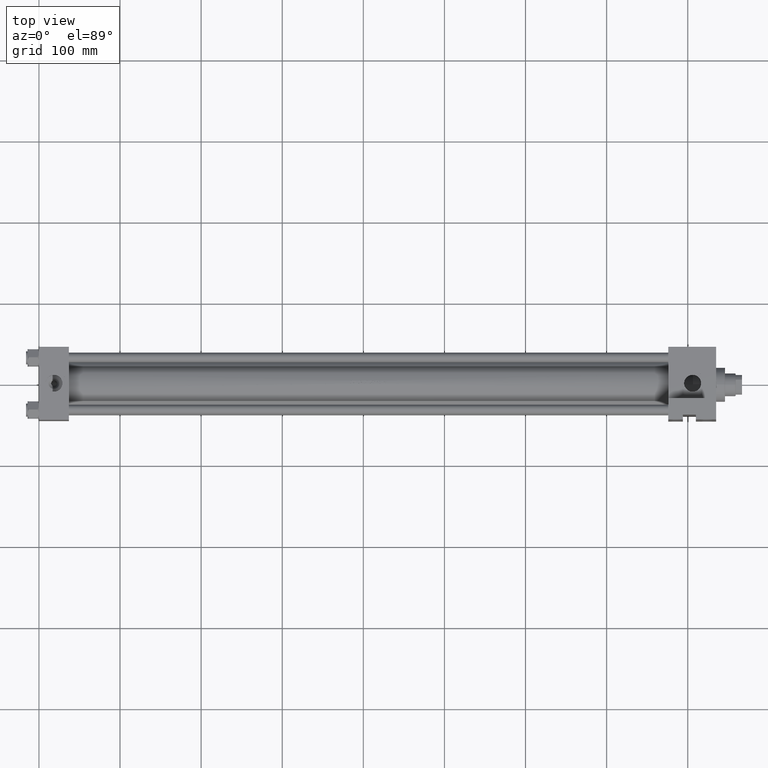
[diagram: clean part render]
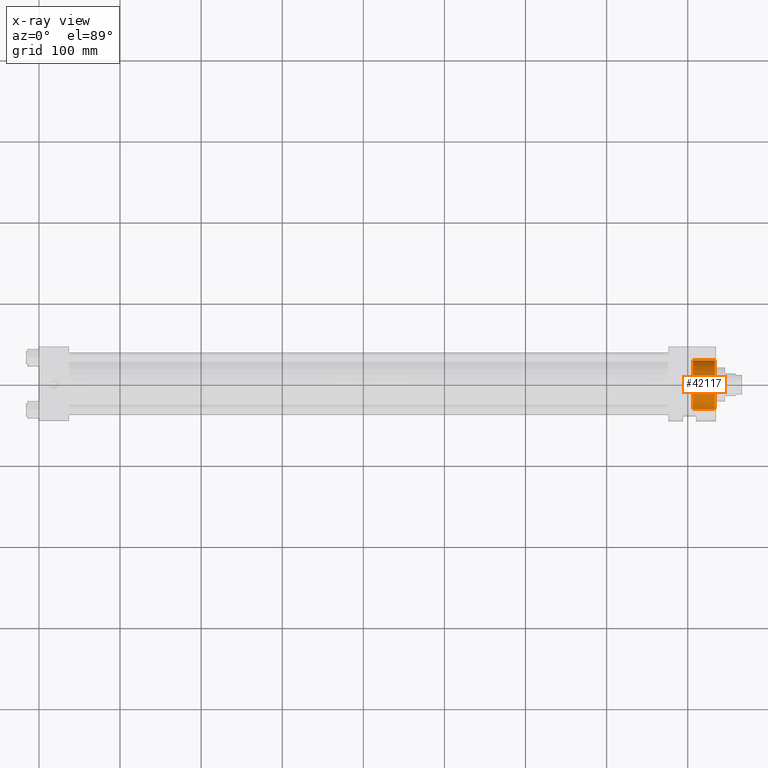
[diagram: x-ray — body ghosted, one internal face saturated and labeled with its STEP entity id]
A machine part, top view, then the same camera in x-ray: the body is ghosted and one INTERNAL B-rep face — a face not visible from any outside direction — is saturated and labeled: STEP entity #42117.
In plain terms, the highlighted cylindrical surface (edge-blend (fillet) strip) has radius 30 mm, axis along (1, 0, 0).
Its self-contained STEP definition (entity closure, byte-faithful):
#1105 = AXIS2_PLACEMENT_3D ( 'NONE', #23344, #38060, #19746 ) ;
#2352 = VERTEX_POINT ( 'NONE', #42672 ) ;
#2470 = CARTESIAN_POINT ( 'NONE',  ( 816.1426373407324490, -29.77556233815022324, 2.722778074583729335 ) ) ;
#3166 = CARTESIAN_POINT ( 'NONE',  ( 815.5890740911853527, -29.82597234611449011, -4.241818728040416708 ) ) ;
#3397 = CARTESIAN_POINT ( 'NONE',  ( 814.9364672911785874, -29.29217815297126748, 5.484552664452941428 ) ) ;
#5732 = LINE ( 'NONE', #42144, #35740 ) ;
#6018 = EDGE_LOOP ( 'NONE', ( #26955, #44918, #43097, #8241, #18542, #22860 ) ) ;
#6290 = CARTESIAN_POINT ( 'NONE',  ( 813.2943609690768199, -29.28122748061995750, -7.532231903756689384 ) ) ;
#6533 = CARTESIAN_POINT ( 'NONE',  ( 806.9857693311234925, -27.72650347505713242, 10.45606637726349852 ) ) ;
#6762 = CARTESIAN_POINT ( 'NONE',  ( 811.4410082390686512, -28.92135572329440052, -8.982022474363281717 ) ) ;
#7696 = CIRCLE ( 'NONE', #27720, 30.00000000000000000 ) ;
#8241 = ORIENTED_EDGE ( 'NONE', *, *, #41285, .F. ) ;
#8418 = CARTESIAN_POINT ( 'NONE',  ( 833.4999999999998863, 0.000000000000000000, -31.00000000000000000 ) ) ;
#8652 = CYLINDRICAL_SURFACE ( 'NONE', #1105, 30.00000000000000000 ) ;
#9911 = CARTESIAN_POINT ( 'NONE',  ( 815.9523844165510127, -29.91341295647253062, -3.300747244300241245 ) ) ;
#10142 = CARTESIAN_POINT ( 'NONE',  ( 813.0354893909110388, -28.68581333229977659, 7.796196831893563051 ) ) ;
#10356 = CIRCLE ( 'NONE', #32636, 30.00000000000000000 ) ;
#10385 = CARTESIAN_POINT ( 'NONE',  ( 815.4481920906182495, -29.79109326743697039, -4.547053126933525924 ) ) ;
#10612 = CARTESIAN_POINT ( 'NONE',  ( 815.8411700215635847, -29.88713110324905031, -3.618665590308101532 ) ) ;
#10795 = EDGE_CURVE ( 'NONE', #26646, #17791, #10356, .T. ) ;
#10841 = CARTESIAN_POINT ( 'NONE',  ( 814.3756918989668065, -29.09754764117865378, 6.307835491000180816 ) ) ;
#11441 = AXIS2_PLACEMENT_3D ( 'NONE', #25016, #32480, #32019 ) ;
#13533 = CARTESIAN_POINT ( 'NONE',  ( 812.5292353237038014, -28.54945231340392553, 8.224362038574074774 ) ) ;
#13771 = CARTESIAN_POINT ( 'NONE',  ( 815.4198301636896531, -29.47322511476122386, 4.605380719965322278 ) ) ;
#14242 = CARTESIAN_POINT ( 'NONE',  ( 813.0497526058524045, -29.22890494418972551, -7.761781719053247208 ) ) ;
#16495 = DIRECTION ( 'NONE',  ( 0.000000000000000000, 0.000000000000000000, -1.000000000000000000 ) ) ;
#16908 = CARTESIAN_POINT ( 'NONE',  ( 806.9854865917531015, -28.47074083353927776, -10.45607447426598391 ) ) ;
#17153 = CARTESIAN_POINT ( 'NONE',  ( 815.5639562540262659, -29.53013496997693821, 4.298177989442644176 ) ) ;
#17390 = CARTESIAN_POINT ( 'NONE',  ( 808.6430791451600726, -28.57169210429209016, -10.14683176183497793 ) ) ;
#17618 = CARTESIAN_POINT ( 'NONE',  ( 809.6124520334579984, -28.66712330909117767, -9.843556216277898230 ) ) ;
#17791 = VERTEX_POINT ( 'NONE', #8418 ) ;
#17848 = CARTESIAN_POINT ( 'NONE',  ( 816.4822874538778024, -30.00545757202526787, -0.6394966835661409776 ) ) ;
#18038 = EDGE_CURVE ( 'NONE', #21310, #43284, #43808, .T. ) ;
#18086 = CARTESIAN_POINT ( 'NONE',  ( 815.1063139232938966, -29.35434869457942142, 5.197862889593044322 ) ) ;
#18542 = ORIENTED_EDGE ( 'NONE', *, *, #28524, .F. ) ;
#19746 = DIRECTION ( 'NONE',  ( 0.000000000000000000, 0.000000000000000000, -1.000000000000000000 ) ) ;
#21000 = CARTESIAN_POINT ( 'NONE',  ( 816.1445732019928982, -29.95625094728536553, -2.651890362547861368 ) ) ;
#21235 = CARTESIAN_POINT ( 'NONE',  ( 816.3418385340791019, -29.87743572928569336, 1.729401313259159023 ) ) ;
#21310 = VERTEX_POINT ( 'NONE', #40304 ) ;
#21459 = CARTESIAN_POINT ( 'NONE',  ( 809.9314564415618634, -28.70493539292247931, -9.720492963669219222 ) ) ;
#22216 = LINE ( 'NONE', #29461, #34254 ) ;
#22325 = CARTESIAN_POINT ( 'NONE',  ( 806.3000000000000682, -28.46420577591641532, -10.47570522685708916 ) ) ;
#22860 = ORIENTED_EDGE ( 'NONE', *, *, #24775, .T. ) ;
#23344 = CARTESIAN_POINT ( 'NONE',  ( 806.3000000000000682, 0.000000000000000000, -1.000000000000000888 ) ) ;
#24600 = CARTESIAN_POINT ( 'NONE',  ( 816.4198531896475970, -30.00587626062161561, -1.312955900394559894 ) ) ;
#24775 = EDGE_CURVE ( 'NONE', #37478, #43284, #39790, .T. ) ;
#25016 = CARTESIAN_POINT ( 'NONE',  ( 806.3000000000000682, 0.000000000000000000, -1.000000000000000888 ) ) ;
#25077 = CARTESIAN_POINT ( 'NONE',  ( 810.8574940332118786, -28.82727800494962977, -9.310793980744691112 ) ) ;
#25300 = CARTESIAN_POINT ( 'NONE',  ( 806.3000000000000682, -27.71837277955335921, 10.47570522685708738 ) ) ;
#25525 = CARTESIAN_POINT ( 'NONE',  ( 816.2258557066254525, -29.97285750844972441, -2.319261410411419089 ) ) ;
#26646 = VERTEX_POINT ( 'NONE', #31735 ) ;
#26955 = ORIENTED_EDGE ( 'NONE', *, *, #18038, .F. ) ;
#27720 = AXIS2_PLACEMENT_3D ( 'NONE', #38175, #34790, #16495 ) ;
#28223 = CARTESIAN_POINT ( 'NONE',  ( 812.2673730055400938, -29.07212567389557023, -8.406138245730069514 ) ) ;
#28453 = CARTESIAN_POINT ( 'NONE',  ( 807.6693090107764874, -27.76313594227567805, 10.36812681317099383 ) ) ;
#28524 = EDGE_CURVE ( 'NONE', #37478, #2352, #7696, .T. ) ;
#28934 = CARTESIAN_POINT ( 'NONE',  ( 813.9588984193935630, -28.96243098929222626, 6.826195083478862280 ) ) ;
#29461 = CARTESIAN_POINT ( 'NONE',  ( 806.3000000000000682, 3.673940397442059178E-15, 28.99999999999999645 ) ) ;
#30710 = DIRECTION ( 'NONE',  ( 0.000000000000000000, 0.000000000000000000, 1.000000000000000000 ) ) ;
#31196 = CARTESIAN_POINT ( 'NONE',  ( 833.4999999999998863, 0.000000000000000000, -1.000000000000000888 ) ) ;
#31604 = CARTESIAN_POINT ( 'NONE',  ( 807.6566332553273924, -28.49954784244026484, -10.37017911800956504 ) ) ;
#31735 = CARTESIAN_POINT ( 'NONE',  ( 833.4999999999998863, 3.673940397442059178E-15, 28.99999999999999645 ) ) ;
#31846 = CARTESIAN_POINT ( 'NONE',  ( 814.5711567035607459, -29.16377901961571695, 6.039539580007560637 ) ) ;
#32019 = DIRECTION ( 'NONE',  ( 0.000000000000000000, 0.000000000000000000, -1.000000000000000000 ) ) ;
#32083 = CARTESIAN_POINT ( 'NONE',  ( 816.4787612037264353, -29.97040760212240329, 0.3744198229018337321 ) ) ;
#32313 = CARTESIAN_POINT ( 'NONE',  ( 810.8447652349590271, -28.17731975516849374, 9.298989261276771501 ) ) ;
#32480 = DIRECTION ( 'NONE',  ( 1.000000000000000000, 0.000000000000000000, 0.000000000000000000 ) ) ;
#32636 = AXIS2_PLACEMENT_3D ( 'NONE', #31196, #37712, #30710 ) ;
#32776 = CARTESIAN_POINT ( 'NONE',  ( 810.5411885798157527, -28.12113469736260640, 9.450972505247131394 ) ) ;
#34254 = VECTOR ( 'NONE', #47566, 1000.000000000000000 ) ;
#34790 = DIRECTION ( 'NONE',  ( 1.000000000000000000, 0.000000000000000000, 0.000000000000000000 ) ) ;
#35225 = CARTESIAN_POINT ( 'NONE',  ( 806.3000000000000682, -28.46420577591641532, -10.47570522685708916 ) ) ;
#35701 = CARTESIAN_POINT ( 'NONE',  ( 815.1364573945709253, -29.71382324160687460, -5.144819938303716533 ) ) ;
#35740 = VECTOR ( 'NONE', #42385, 1000.000000000000000 ) ;
#35936 = CARTESIAN_POINT ( 'NONE',  ( 809.6191945697742085, -27.96756192349370806, 9.858160615229264678 ) ) ;
#36166 = CARTESIAN_POINT ( 'NONE',  ( 813.9923824936824985, -29.43578233435498248, -6.811717820881935559 ) ) ;
#37478 = VERTEX_POINT ( 'NONE', #22325 ) ;
#37712 = DIRECTION ( 'NONE',  ( 1.000000000000000000, 0.000000000000000000, 0.000000000000000000 ) ) ;
#38060 = DIRECTION ( 'NONE',  ( 1.000000000000000000, -0.000000000000000000, -0.000000000000000000 ) ) ;
#38175 = CARTESIAN_POINT ( 'NONE',  ( 806.3000000000000682, 0.000000000000000000, -1.000000000000000888 ) ) ;
#39566 = CARTESIAN_POINT ( 'NONE',  ( 811.4295968439711260, -28.29536937898792814, 8.970085260193885190 ) ) ;
#39790 = B_SPLINE_CURVE_WITH_KNOTS ( 'NONE', 3,
 ( #35225, #16908, #31604, #17390, #39798, #17618, #21459, #25077, #6762, #28223, #40264, #14242, #6290, #36166, #46806, #47273, #35701, #10385, #3166, #10612, #9911, #21000, #25525, #24600, #17848, #32083, #43184, #43879, #21235, #2470, #43422, #17153, #13771, #18086, #3397, #31846, #10841, #28934, #43657, #10142, #13533, #42948, #39566, #32313, #32776, #35936, #47507, #28453, #6533, #25300 ),
 .UNSPECIFIED., .F., .F.,
 ( 4, 2, 2, 2, 2, 2, 2, 2, 2, 2, 2, 2, 2, 2, 2, 2, 2, 2, 2, 2, 2, 2, 2, 2, 4 ),
 ( 0.000000000000000000, 0.002026978302085518518, 0.003040467453128116015, 0.004053956604170713511, 0.006080934906255907636, 0.007094424057298502964, 0.008107913208341097425, 0.01013489151042651706, 0.01114838066146931796, 0.01216186981251211538, 0.01317535896355491454, 0.01418884811459771370, 0.01621582641668330854, 0.01722931556772610770, 0.01824280471876890686, 0.02026978302085450170, 0.02128327217189735984, 0.02229676132294022145, 0.02331025047398308306, 0.02432373962502594120, 0.02635071792711166094, 0.02736420707815465439, 0.02837769622919764784, 0.03040467453128393310, 0.03243165283337022531 ),
 .UNSPECIFIED. ) ;
#39798 = CARTESIAN_POINT ( 'NONE',  ( 808.9684924416047807, -28.60055962427752618, -10.05651337697088188 ) ) ;
#40264 = CARTESIAN_POINT ( 'NONE',  ( 812.5358293362795621, -29.12424785843095876, -8.199219605851840953 ) ) ;
#40304 = CARTESIAN_POINT ( 'NONE',  ( 806.3000000000000682, 3.673940397442059178E-15, 28.99999999999999645 ) ) ;
#41285 = EDGE_CURVE ( 'NONE', #2352, #17791, #5732, .T. ) ;
#42117 = ADVANCED_FACE ( 'NONE', ( #42409 ), #8652, .F. ) ;
#42144 = CARTESIAN_POINT ( 'NONE',  ( 806.3000000000000682, 0.000000000000000000, -31.00000000000000000 ) ) ;
#42385 = DIRECTION ( 'NONE',  ( 1.000000000000000000, -0.000000000000000000, -0.000000000000000000 ) ) ;
#42409 = FACE_OUTER_BOUND ( 'NONE', #6018, .T. ) ;
#42672 = CARTESIAN_POINT ( 'NONE',  ( 806.3000000000000682, 0.000000000000000000, -31.00000000000000000 ) ) ;
#42948 = CARTESIAN_POINT ( 'NONE',  ( 811.7118157897212996, -28.35733462831269946, 8.792935891825310435 ) ) ;
#43097 = ORIENTED_EDGE ( 'NONE', *, *, #10795, .T. ) ;
#43184 = CARTESIAN_POINT ( 'NONE',  ( 816.4612744203718648, -29.95298307123727710, 0.7130183435380399448 ) ) ;
#43284 = VERTEX_POINT ( 'NONE', #44473 ) ;
#43422 = CARTESIAN_POINT ( 'NONE',  ( 815.9479465757600565, -29.68749259547008634, 3.364748424065771015 ) ) ;
#43576 = EDGE_CURVE ( 'NONE', #21310, #26646, #22216, .T. ) ;
#43657 = CARTESIAN_POINT ( 'NONE',  ( 813.7367531927734490, -28.89330233600372111, 7.077086196799085904 ) ) ;
#43808 = CIRCLE ( 'NONE', #11441, 30.00000000000000000 ) ;
#43879 = CARTESIAN_POINT ( 'NONE',  ( 816.3928040012793872, -29.90645978031200158, 1.391503736084164666 ) ) ;
#44473 = CARTESIAN_POINT ( 'NONE',  ( 806.3000000000000682, -27.71837277955335921, 10.47570522685708738 ) ) ;
#44918 = ORIENTED_EDGE ( 'NONE', *, *, #43576, .T. ) ;
#46806 = CARTESIAN_POINT ( 'NONE',  ( 814.4103550977162058, -29.53563529161872125, -6.289213753387973505 ) ) ;
#47273 = CARTESIAN_POINT ( 'NONE',  ( 814.9645711651903639, -29.67117783592806646, -5.438872534874957587 ) ) ;
#47507 = CARTESIAN_POINT ( 'NONE',  ( 808.9836314160348820, -27.88378830908935058, 10.06889218140228870 ) ) ;
#47566 = DIRECTION ( 'NONE',  ( 1.000000000000000000, -0.000000000000000000, -0.000000000000000000 ) ) ;